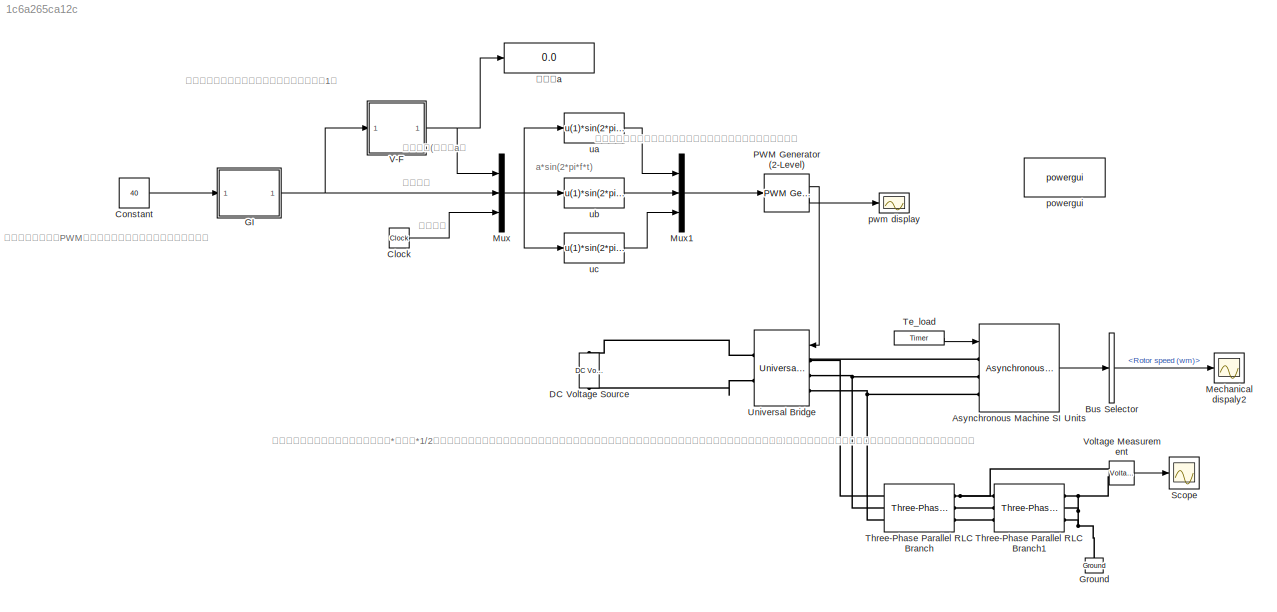
MODEL slx_1c6a265ca12c
KIND model
CONFIG AbsTol = auto
CONFIG EnableMultiTasking = on
CONFIG FixedStep = auto
CONFIG MaxStep = auto
CONFIG MinStep = auto
CONFIG RelTol = 1e-3
CONFIG SampleTimeConstraint = Unconstrained
CONFIG Solver = ode23tb
CONFIG SolverName = ode23tb
CONFIG StartTime = 0.0
CONFIG StopTime = 3
BLOCK [Reference] Asynchronous Machine SI Units  REF=powerlib/Machines/Asynchronous Machine
SI Units
  AttributesFormatString = \n
  Ports = [1, 1, 0, 0, 0, 3]
  SourceBlock = powerlib/Machines/Asynchronous Machine\nSI Units
  SourceProductBaseCode = PS
  SourceProductName = Simscape Electrical
  SourceType = Asynchronous Machine
BLOCK [BusSelector] Bus Selector
  OutputAsBus = off
  OutputSignals = Mechanical.Rotor speed (wm)
  Ports = [1, 1]
BLOCK [Clock] Clock
BLOCK [Constant] Constant
  Value = 40
BLOCK [Reference] DC Voltage Source  REF=powerlib/Electrical
Sources/DC Voltage Source
  Ports = [0, 0, 0, 0, 0, 1, 1]
  SourceBlock = powerlib/Electrical\nSources/DC Voltage Source
  SourceProductBaseCode = PS
  SourceProductName = Simscape Electrical
  SourceType = DC Voltage Source
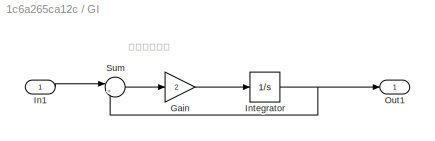
BLOCK [SubSystem] GI
  Ports = [1, 1]
  RequestExecContextInheritance = off
BLOCK [Gain] GI/Gain
  Gain = 2
  OutDataTypeStr = Inherit: Inherit via internal rule
  ParamDataTypeStr = Inherit: Inherit via internal rule
  SaturateOnIntegerOverflow = off
BLOCK [Inport] GI/In1
  IconDisplay = Port number
BLOCK [Integrator] GI/Integrator
  Ports = [1, 1]
BLOCK [Outport] GI/Out1
  IconDisplay = Port number
BLOCK [Sum] GI/Sum
  IconShape = round
  InputSameDT = off
  Inputs = |+-
  OutDataTypeStr = Inherit: Inherit via internal rule
  Ports = [2, 1]
  SaturateOnIntegerOverflow = off
BLOCK [Reference] Ground  REF=powerlib/Elements/Ground
  Ports = [0, 0, 0, 0, 0, 1]
  SourceBlock = powerlib/Elements/Ground
  SourceProductBaseCode = PS
  SourceProductName = Simscape Electrical
  SourceType = Ground
BLOCK [Scope] Mechanical dispaly2
  Floating = off
  NumInputPorts = 1
  Ports = [1]
  ScopeSpecificationString = Simulink.scopes.TimeScopeBlockCfg('CurrentConfiguration', extmgr.ConfigurationSet(extmgr.Configuration('Core','General UI',true),extmgr.Configuration('Core','Source UI',true),extmgr.Configuration('Sources','WiredSimulink',true,'DataLoggingVariableName','ScopeData8','DataLoggingSaveFormat','StructureWithTime','DataLoggingDecimation','1','DataLoggingDecimateData',true),extmgr.Configuration('Visuals'...<+1722ch>
BLOCK [Mux] Mux
  DisplayOption = bar
  Inputs = 3
  Ports = [3, 1]
BLOCK [Mux] Mux1
  DisplayOption = bar
  Inputs = 3
  Ports = [3, 1]
BLOCK [Reference] PWM Generator (2-Level)  REF=powerlib_meascontrol/Pulse & Signal
Generators/PWM Generator
(2-Level)
  Ports = [1, 2]
  SourceBlock = powerlib_meascontrol/Pulse & Signal\nGenerators/PWM Generator\n(2-Level)
  SourceProductBaseCode = PS
  SourceProductName = Simscape Electrical
  SourceType = PWM Generator (2-Level)
BLOCK [Scope] Scope
  Floating = off
  NumInputPorts = 1
  Ports = [1]
  ScopeSpecificationString = Simulink.scopes.TimeScopeBlockCfg('CurrentConfiguration', extmgr.ConfigurationSet(extmgr.Configuration('Core','General UI',true),extmgr.Configuration('Core','Source UI',true),extmgr.Configuration('Sources','WiredSimulink',true,'DataLoggingSaveFormat','StructureWithTime','DataLoggingDecimation','1','DataLoggingDecimateData',true),extmgr.Configuration('Visuals','Time Domain',true,'SerializedDisplays...<+1704ch>
BLOCK [Reference] Te_load  REF=powerlib_extras/Control 
Blocks/Timer
  Ports = [0, 1]
  SourceBlock = powerlib_extras/Control \nBlocks/Timer
  SourceType = Timer
BLOCK [Reference] Three-Phase Parallel RLC Branch  REF=powerlib/Elements/Three-Phase
Parallel RLC Branch
  AttributesFormatString = \n
  Ports = [0, 0, 0, 0, 0, 3, 3]
  SourceBlock = powerlib/Elements/Three-Phase\nParallel RLC Branch
  SourceProductBaseCode = PS
  SourceProductName = Simscape Electrical
  SourceType = Three-Phase Parallel RLC Branch
BLOCK [Reference] Three-Phase Parallel RLC Branch1  REF=powerlib/Elements/Three-Phase
Parallel RLC Branch
  AttributesFormatString = \n
  Ports = [0, 0, 0, 0, 0, 3, 3]
  SourceBlock = powerlib/Elements/Three-Phase\nParallel RLC Branch
  SourceProductBaseCode = PS
  SourceProductName = Simscape Electrical
  SourceType = Three-Phase Parallel RLC Branch
BLOCK [Reference] Universal Bridge  REF=powerlib/Power
Electronics/Universal Bridge
  Ports = [1, 0, 0, 0, 0, 3, 2]
  SourceBlock = powerlib/Power\nElectronics/Universal Bridge
  SourceProductBaseCode = PS
  SourceProductName = Simscape Electrical
  SourceType = Universal Bridge
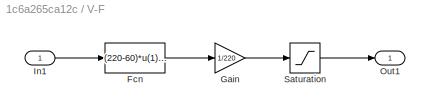
BLOCK [SubSystem] V-F
  Ports = [1, 1]
  RequestExecContextInheritance = off
BLOCK [Fcn] V-F/Fcn
  Expr = (220-60)*u(1)/50+60
BLOCK [Gain] V-F/Gain
  Gain = 1/220
  OutDataTypeStr = Inherit: Inherit via internal rule
  ParamDataTypeStr = Inherit: Inherit via internal rule
  SaturateOnIntegerOverflow = off
BLOCK [Inport] V-F/In1
  IconDisplay = Port number
BLOCK [Outport] V-F/Out1
  IconDisplay = Port number
BLOCK [Saturate] V-F/Saturation
  InputPortMap = u0
  LowerLimit = -0.95
  Ports = [1, 1]
  UpperLimit = 0.95
BLOCK [Reference] Voltage Measurement  REF=powerlib/Measurements/Voltage Measurement
  Ports = [0, 1, 0, 0, 0, 2]
  SourceBlock = powerlib/Measurements/Voltage Measurement
  SourceProductBaseCode = PS
  SourceProductName = Simscape Electrical
  SourceType = Voltage Measurement
BLOCK [Reference] powergui  REF=powerlib/powergui
  Ports = []
  Priority = 1
  SourceBlock = powerlib/powergui
  SourceProductBaseCode = PS
  SourceProductName = Simscape Power Systems
  SourceType = PSB option menu block
BLOCK [Scope] pwm display
  Floating = off
  NumInputPorts = 1
  Ports = [1]
  ScopeSpecificationString = Simulink.scopes.TimeScopeBlockCfg('CurrentConfiguration', extmgr.ConfigurationSet(extmgr.Configuration('Core','General UI',true),extmgr.Configuration('Core','Source UI',true),extmgr.Configuration('Sources','WiredSimulink',true,'DataLoggingVariableName','ScopeData3','DataLoggingSaveFormat','StructureWithTime','DataLoggingDecimation','1','DataLoggingDecimateData',true),extmgr.Configuration('Visuals'...<+1810ch>
BLOCK [Fcn] ua
  Expr = u(1)*sin(2*pi*u(2)*u(3))
BLOCK [Fcn] ub
  Expr = u(1)*sin(2*pi*u(2)*u(3)-2*pi/3)
BLOCK [Fcn] uc
  Expr = u(1)*sin(2*pi*u(2)*u(3)-4*pi/3)
BLOCK [Display] 调制度a
  Decimation = 1
  Ports = [1]
ANNOTATION (root): a*sin(2*pi*f*t)
ANNOTATION (root): 产生一个频率为设定频率，电压（调制度）与频率相关的调制信号
ANNOTATION (root): 控制升频速度，看PWM发生器调制信号波形前半段是缓慢变频的
ANNOTATION (root): 时间信号
ANNOTATION (root): 根据频率选择电压，同时限幅（使调制度小于1）
ANNOTATION (root): 电压信号(调制度a）
ANNOTATION (root): 这个滤波模块没有接入电路，只是为了查看输出等效正弦波的波形
ANNOTATION (root): 逆变输出电压正弦波幅值为直流侧电压*调制度*1/2，他正比于调制度，所以恒压频比也就是保证调制度和频率的比值不变，也就是上面那块调制信号生成电路的功能
ANNOTATION (root): 频率信号
ANNOTATION GI: 控制上升速度
LINE Asynchronous Machine SI Units:1 -> Bus Selector:1
LINE Bus Selector:1 -> Mechanical dispaly2:1
LINE Clock:1 -> Mux:3
LINE Constant:1 -> GI:1
LINE GI/Gain:1 -> GI/Integrator:1
LINE GI/In1:1 -> GI/Sum:1
NET GI/Integrator:1 -> GI/Out1:1, GI/Sum:2
LINE GI/Sum:1 -> GI/Gain:1
NET GI:1 -> Mux:2, V-F:1
LINE Mux1:1 -> PWM Generator (2-Level):1
NET Mux:1 -> ua:1, ub:1, uc:1
LINE PWM Generator (2-Level):1 -> Universal Bridge:1
LINE PWM Generator (2-Level):2 -> pwm display:1
LINE Te_load:1 -> Asynchronous Machine SI Units:1
LINE V-F/Fcn:1 -> V-F/Gain:1
LINE V-F/Gain:1 -> V-F/Saturation:1
LINE V-F/In1:1 -> V-F/Fcn:1
LINE V-F/Saturation:1 -> V-F/Out1:1
NET V-F:1 -> Mux:1, 调制度a:1
LINE Voltage Measurement:1 -> Scope:1
LINE ua:1 -> Mux1:1
LINE ub:1 -> Mux1:2
LINE uc:1 -> Mux1:3
PNET net1: Asynchronous Machine SI Units:LConn1 -- Three-Phase Parallel RLC Branch:LConn1 -- Universal Bridge:LConn1
PNET net2: Asynchronous Machine SI Units:LConn2 -- Three-Phase Parallel RLC Branch:LConn2 -- Universal Bridge:LConn2
PNET net3: Asynchronous Machine SI Units:LConn3 -- Three-Phase Parallel RLC Branch:LConn3 -- Universal Bridge:LConn3
PLINE DC Voltage Source:LConn1 -- Universal Bridge:RConn2
PLINE DC Voltage Source:RConn1 -- Universal Bridge:RConn1
PNET net4: Ground:LConn1 -- Three-Phase Parallel RLC Branch1:RConn1 -- Three-Phase Parallel RLC Branch1:RConn2 -- Three-Phase Parallel RLC Branch1:RConn3 -- Voltage Measurement:LConn2
PNET net5: Three-Phase Parallel RLC Branch1:LConn1 -- Three-Phase Parallel RLC Branch:RConn1 -- Voltage Measurement:LConn1
PLINE Three-Phase Parallel RLC Branch1:LConn2 -- Three-Phase Parallel RLC Branch:RConn2
PLINE Three-Phase Parallel RLC Branch1:LConn3 -- Three-Phase Parallel RLC Branch:RConn3
note: NET lines group one-source signal fan-out (src -> all destinations, sorted); 1:1 wires keep LINE; PNET lines group multi-terminal physical nets as a canonical sorted terminal list (undirected conserving connections); 2-terminal nets keep the pairwise PLINE form
